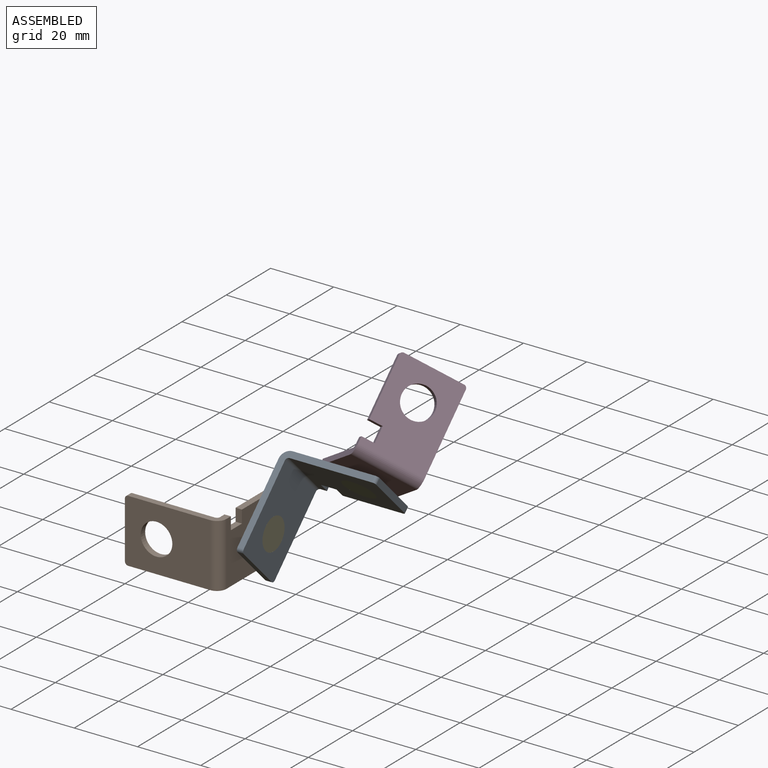
[diagram: assembled view]
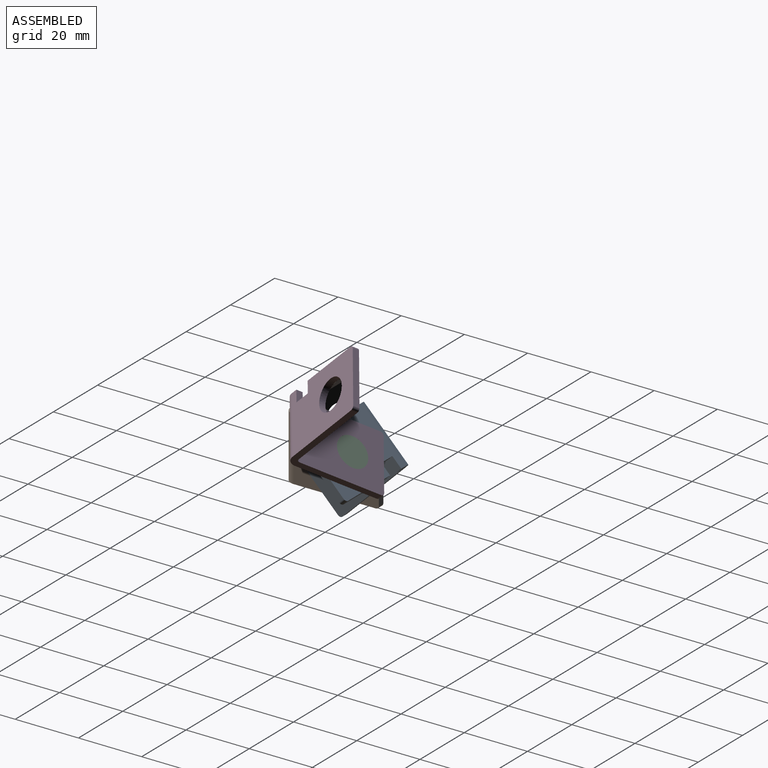
[diagram: assembled view, second angle]
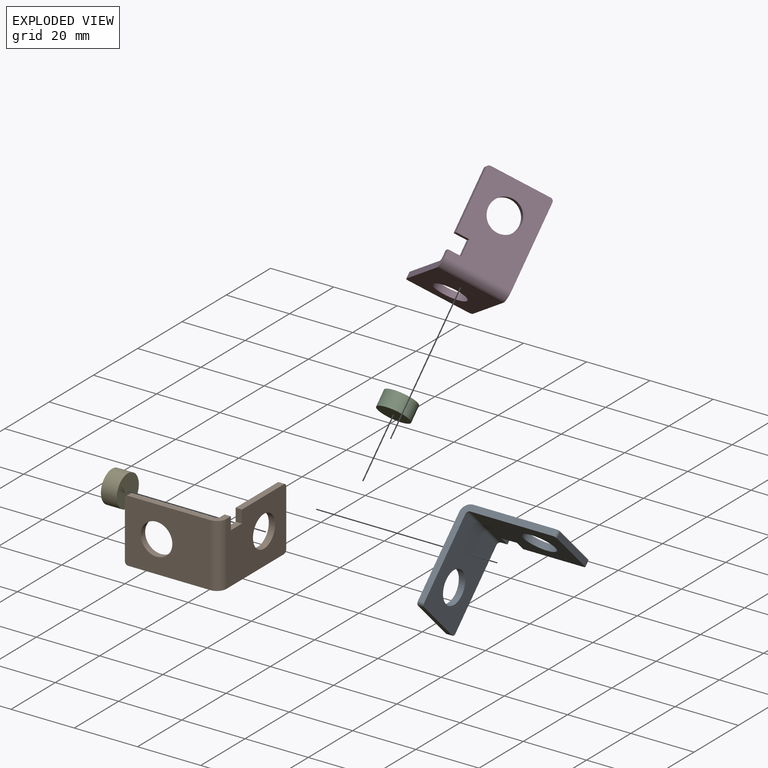
[diagram: exploded view]
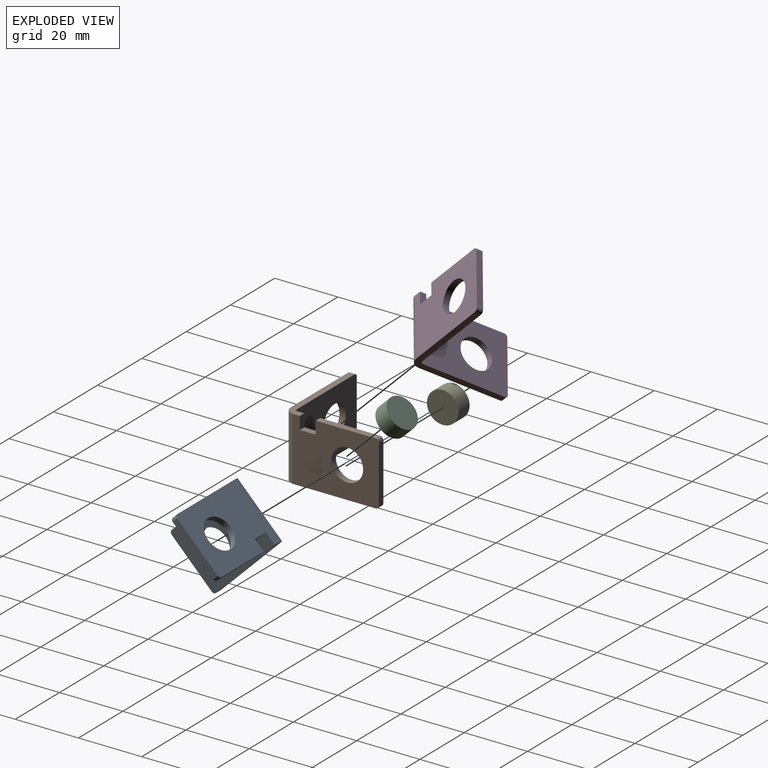
[diagram: exploded view, second angle]
ASSEMBLY  parts=5 mates=8
PART A: 20 faces, bbox 30x20x30 mm
  f0: plane 29x5mm, normal (0,-1,0), area 62.3mm2, adj f1,f2,f4,f5,f7,f8,f15,f19
  f1: plane 27x20mm, normal (1,0,0), area 441mm2, adj f0,f5,f6,f9,f10,f12,f13,f14
  f2: plane 27x20mm, normal (0,0,1), area 461mm2, adj f0,f3,f8,f10,f11,f17,f19
  f3: plane 18x2mm, normal (-1,0,0), area 36mm2, adj f2,f4,f17,f19
  f4: plane 27x20mm, normal (0,0,-1), area 461mm2, adj f0,f3,f5,f10,f11,f17,f19
  f5: cylinder r=3mm len=20mm, axis (0,1,0), area 94.2mm2, adj f0,f1,f4,f10
  f6: plane 18x2mm, normal (0,0,1), area 36mm2, adj f1,f7,f16,f18
  f7: plane 27x20mm, normal (-1,0,0), area 441mm2, adj f0,f6,f8,f9,f10,f12,f13,f14
  f8: cylinder r=1mm len=20mm, axis (0,1,0), area 31.4mm2, adj f0,f2,f7,f10
  f9: plane 19x2mm, normal (0,-1,0), area 38mm2, adj f1,f7,f14,f18
  f10: plane 29x29mm, normal (0,1,0), area 110.3mm2, adj f1,f2,f4,f5,f7,f8,f16,f17
  f11: cylinder r=5mm len=10mm, axis (0,0,1), area 62.8mm2, adj f2,f4
  f12: cylinder r=5mm len=10mm, axis (-1,0,0), area 62.8mm2, adj f1,f7
  f13: plane 5x2mm, normal (0,-1,0), area 10mm2, adj f1,f7,f14,f15
  f14: plane 4x2mm, normal (0,0,-1), area 8mm2, adj f1,f7,f9,f13
  f15: plane 4x2mm, normal (0,0,1), area 8mm2, adj f0,f1,f7,f13
  f16: cylinder r=1mm len=2mm, axis (-1,0,0), area 3.1mm2, adj f1,f6,f7,f10
  f17: cylinder r=1mm len=2mm, axis (0,0,-1), area 3.1mm2, adj f2,f3,f4,f10
  f18: cylinder r=1mm len=2mm, axis (1,0,0), area 3.1mm2, adj f1,f6,f7,f9
  f19: cylinder r=1mm len=2mm, axis (0,0,1), area 3.1mm2, adj f0,f2,f3,f4
PART B: same geometry as A
PART C: 3 faces, bbox 10x10x5 mm
  f0: cylinder r=5mm len=10mm, axis (0,0,1), area 157.1mm2, adj f1,f2
  f1: plane 10x10mm, normal (0,0,-1), area 78.5mm2, adj f0
  f2: plane 10x10mm, normal (0,0,1), area 78.5mm2, adj f0
PART D: same geometry as A
PART E: same geometry as C
PLACE A rot(axis=(0.68,0.28,0.68),148.3deg) t=(31,27.23,31.16)mm
PLACE B rot(axis=(-1,0,0),90deg) t=(30,0,0)mm
PLACE C rot(axis=(0.91,-0.37,0.16),138.1deg) t=(58.24,19.4,39.11)mm
PLACE D rot(axis=(-0.69,-0.28,-0.67),62.8deg) t=(72.27,30.12,29.66)mm
PLACE E rot(axis=(-0.71,0,0.71),180deg) t=(30,10,-10)mm
MATE revolute E.f0 <-> B.f12  axis (-1,0,0) through (28,20,10)mm
MATE slider C.f0 <-> D.f11  axis (0,-0.71,-0.7) through (51,36.39,26.14)mm
MATE revolute C.f0 <-> A.f12  axis (0,-0.71,-0.7) through (51,32.82,22.63)mm
MATE revolute E.f0 <-> A.f11  axis (1,0,0) through (33,20,10)mm
MATE planar E.f0 <-> A.f2  axis (1,0,0) through (33,20,10)mm
MATE planar C.f0 <-> D.f2  axis (0,0.71,0.7) through (51,36.39,26.14)mm
MATE planar B.f7 <-> E.f0  axis (-1,0,0) through (28,16.27,9.64)mm
MATE planar A.f7 <-> C.f0  axis (0,-0.71,-0.7) through (41,37.03,18.36)mm
